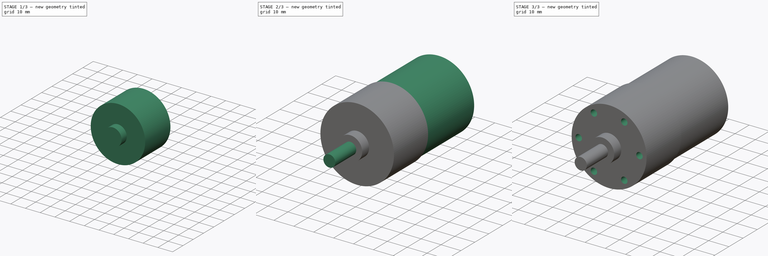
[diagram: build sequence overview — one tinted view per stage of 3, left to right]
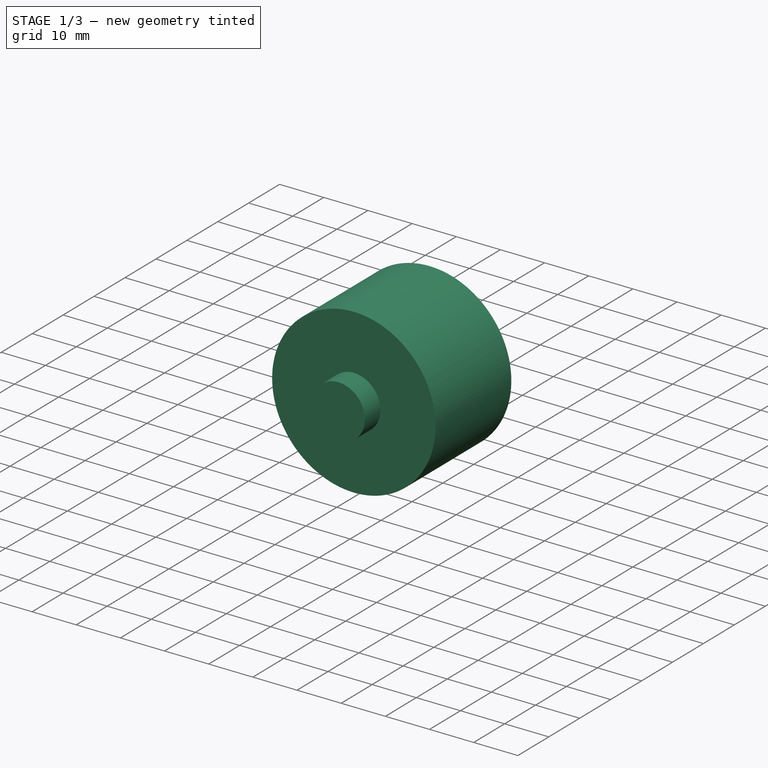
[diagram: stage 1 of 3 — iso view after this stage's code; geometry added in this stage tinted green]
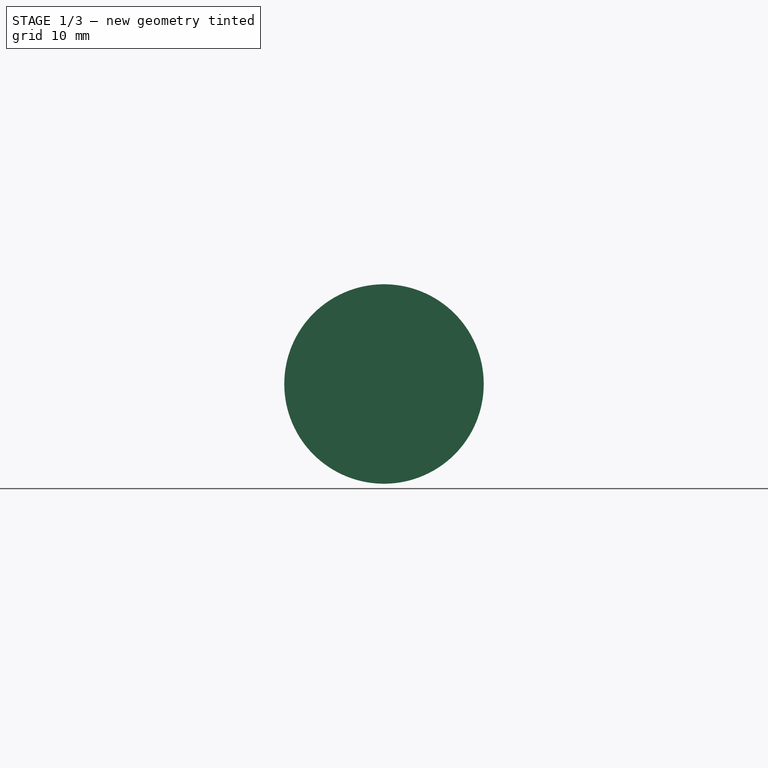
[diagram: stage 1 of 3 — front view after this stage's code; geometry added in this stage tinted green]
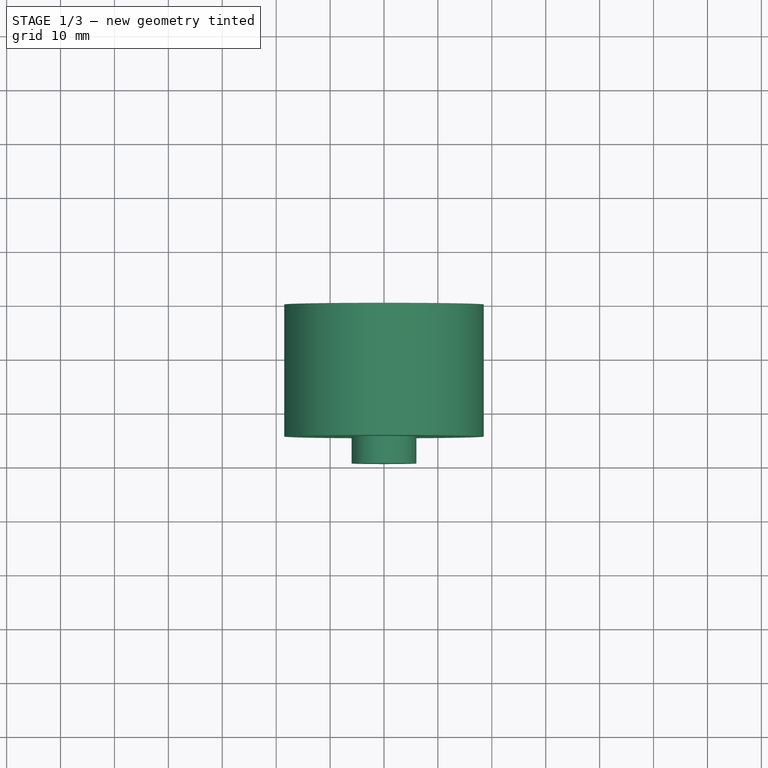
[diagram: stage 1 of 3 — top view after this stage's code; geometry added in this stage tinted green]
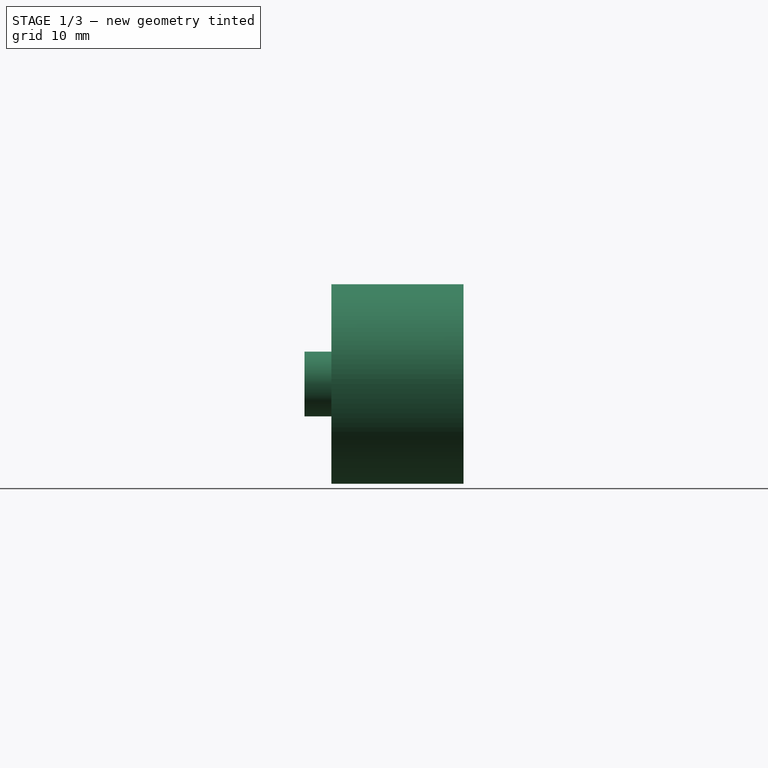
[diagram: stage 1 of 3 — right view after this stage's code; geometry added in this stage tinted green]
FCSTD DOCUMENT  (FreeCAD 0.20R27770 (Git))
Label: DC Motor
License: All rights reserved
LicenseURL: http://en.wikipedia.org/wiki/All_rights_reserved
objects: Sketcher::SketchObject×6, PartDesign::Pad×5, PartDesign::Pocket×1, PartDesign::Body×1
note: 19 computed .brp shape members not serialized (recipe doc carries the construction recipe); baked Part::Feature solids carry a one-line shape summary decoded from their .brp

FEATURE [Sketcher::SketchObject] Sketch
  FullyConstrained = true
  MapMode = 5
  Placement = pos=(0,0,0) rot=(1,0,0;1.5708rad)
  Support = -> [XZ_Plane]
  sketch-geometry (1):
    g0: Circle CenterX=0 CenterY=0 CenterZ=0 NormalX=0 NormalY=0 NormalZ=1 AngleXU=0 Radius=18.5
  constraints (2):
    c: Coincident(g0,g-1)
    c: Diameter(g0) = 37
FEATURE [PartDesign::Pad] Pad
  Direction = (0,-1,2e-16)
  Length = 24.5
  Length2 = 10.0076
  Placement = pos=(0,0,0) rot=(1,0,0;1.5708rad)
  Profile = -> Sketch
  ReferenceAxis = -> Sketch [N_Axis]
  Type = 0
FEATURE [Sketcher::SketchObject] Sketch001
  FullyConstrained = true
  MapMode = 5
  Placement = pos=(0,-24.5,1.63e-14) rot=(1,0,0;1.5708rad)
  Support = -> [Pad]
  sketch-geometry (1):
    g0: Circle CenterX=0 CenterY=0 CenterZ=0 NormalX=0 NormalY=0 NormalZ=1 AngleXU=0 Radius=6
  constraints (2):
    c: Coincident(g0,g-1)
    c: Diameter(g0) = 12
FEATURE [PartDesign::Pad] Pad001
  BaseFeature = -> Pad
  Direction = (0,-1,7e-16)
  Length = 5
  Length2 = 10.0076
  Placement = pos=(0,0,0) rot=(1,0,0;1.5708rad)
  Profile = -> Sketch001
  ReferenceAxis = -> Sketch001 [N_Axis]
  Type = 0
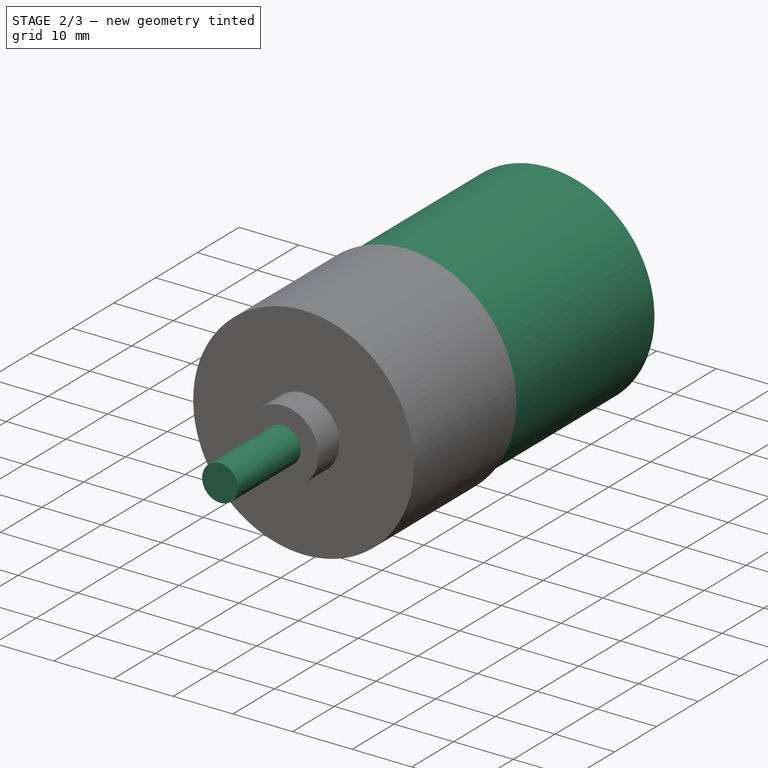
[diagram: stage 2 of 3 — iso view after this stage's code; geometry added in this stage tinted green]
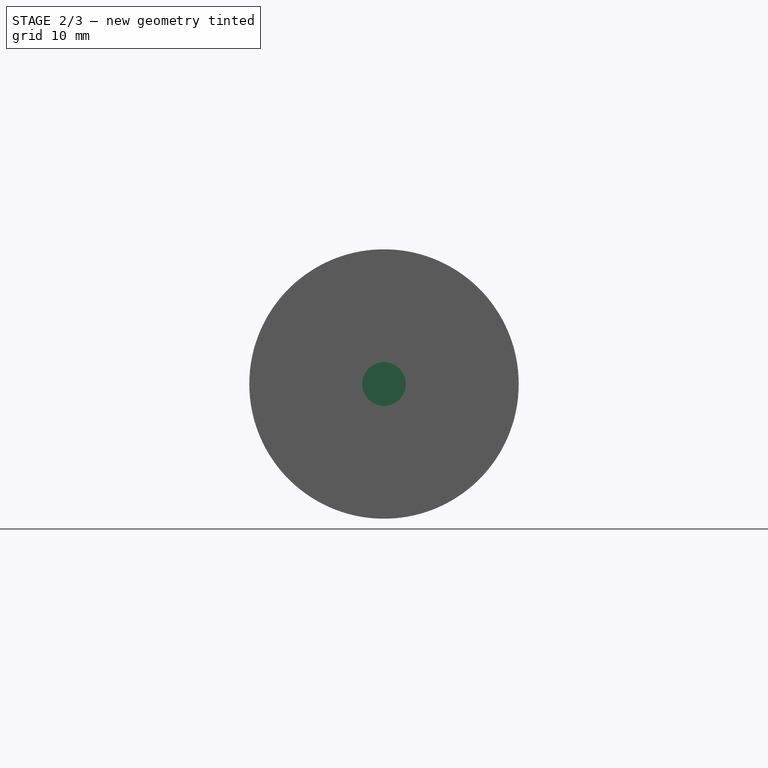
[diagram: stage 2 of 3 — front view after this stage's code; geometry added in this stage tinted green]
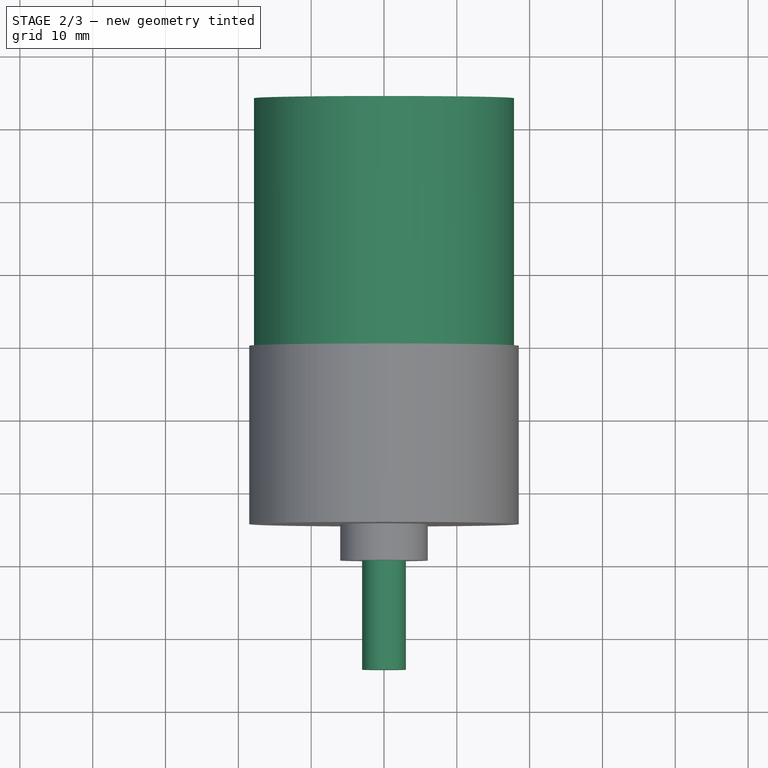
[diagram: stage 2 of 3 — top view after this stage's code; geometry added in this stage tinted green]
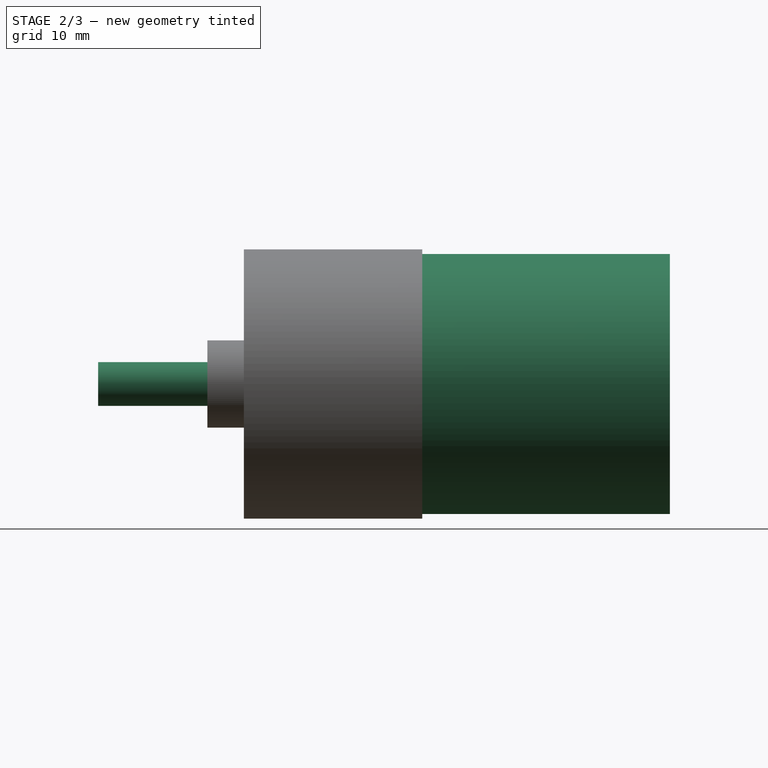
[diagram: stage 2 of 3 — right view after this stage's code; geometry added in this stage tinted green]
FEATURE [Sketcher::SketchObject] Sketch002
  FullyConstrained = true
  MapMode = 5
  Placement = pos=(0,-29.5,3.33e-14) rot=(1,0,0;1.5708rad)
  Support = -> [Pad001]
  sketch-geometry (1):
    g0: Circle CenterX=0 CenterY=0 CenterZ=0 NormalX=0 NormalY=0 NormalZ=1 AngleXU=0 Radius=3
  constraints (2):
    c: Coincident(g0,g-1)
    c: Diameter(g0) = 6
FEATURE [PartDesign::Pad] Pad002
  BaseFeature = -> Pad001
  Direction = (0,-1,1.1e-15)
  Length = 15
  Length2 = 10.0076
  Placement = pos=(0,0,0) rot=(1,0,0;1.5708rad)
  Profile = -> Sketch002
  ReferenceAxis = -> Sketch002 [N_Axis]
  Type = 0
FEATURE [Sketcher::SketchObject] Sketch003
  FullyConstrained = true
  MapMode = 5
  Placement = pos=(0,0,0) rot=(-1,0,0;1.5708rad)
  Support = -> [Pad002]
  sketch-geometry (1):
    g0: Circle CenterX=0 CenterY=0 CenterZ=0 NormalX=0 NormalY=0 NormalZ=1 AngleXU=0 Radius=17.85
  constraints (2):
    c: Coincident(g0,g-1)
    c: Diameter(g0) = 35.7
FEATURE [PartDesign::Pad] Pad003
  BaseFeature = -> Pad002
  Direction = (0,1,-1.4e-15)
  Length = 34
  Length2 = 10.0076
  Placement = pos=(0,0,0) rot=(1,0,0;1.5708rad)
  Profile = -> Sketch003
  ReferenceAxis = -> Sketch003 [N_Axis]
  Type = 0
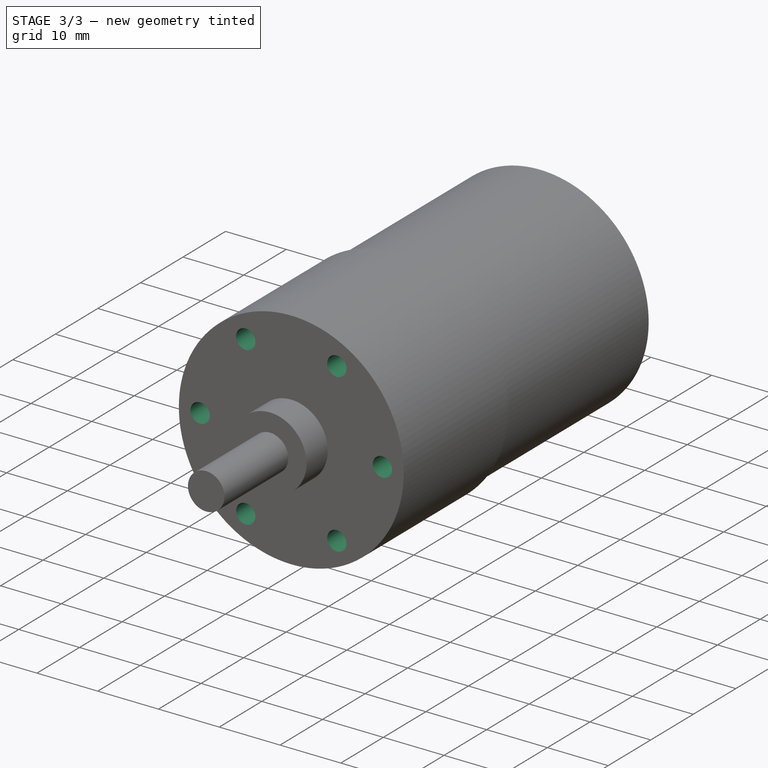
[diagram: stage 3 of 3 — iso view after this stage's code; geometry added in this stage tinted green]
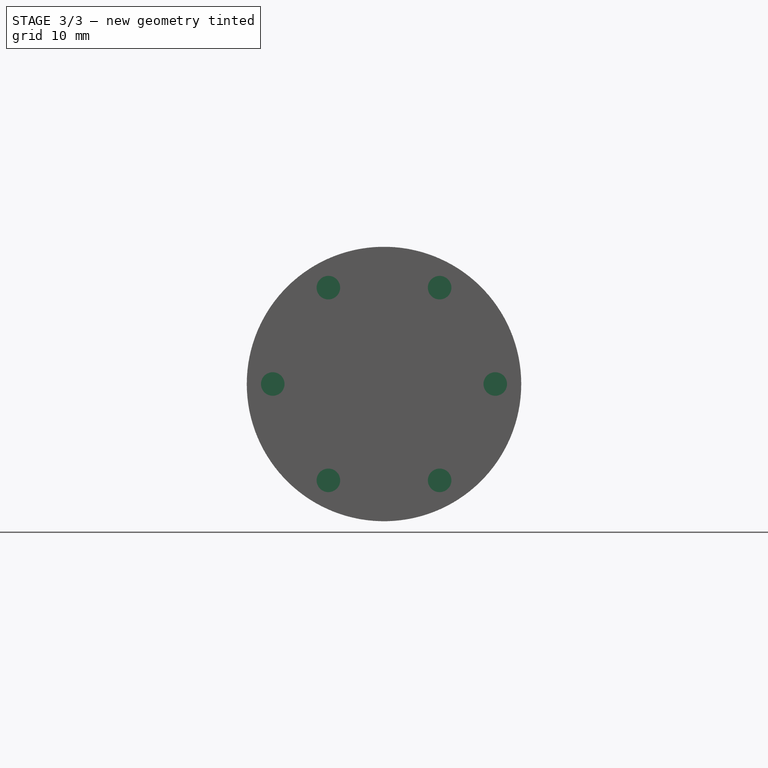
[diagram: stage 3 of 3 — front view after this stage's code; geometry added in this stage tinted green]
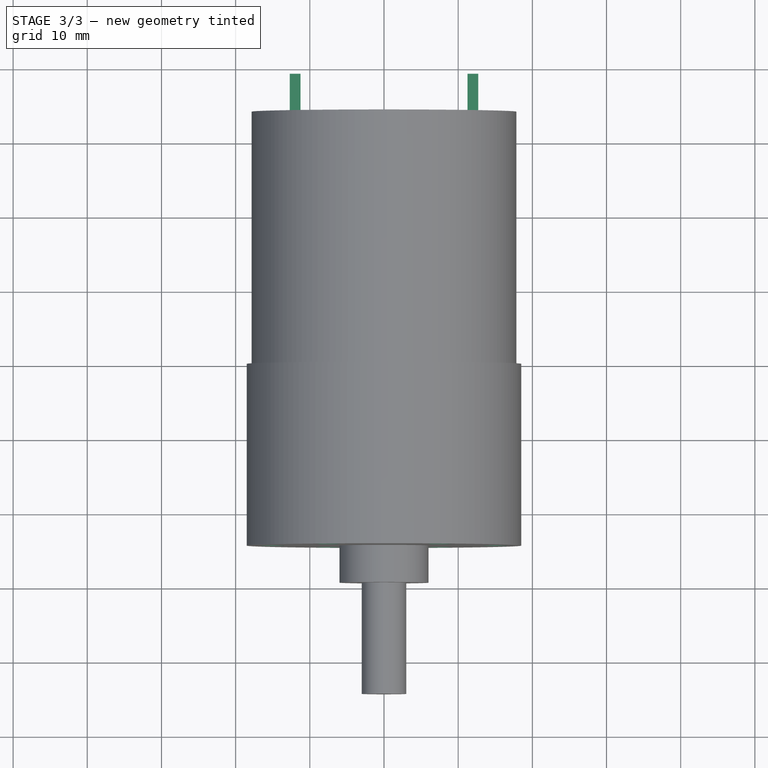
[diagram: stage 3 of 3 — top view after this stage's code; geometry added in this stage tinted green]
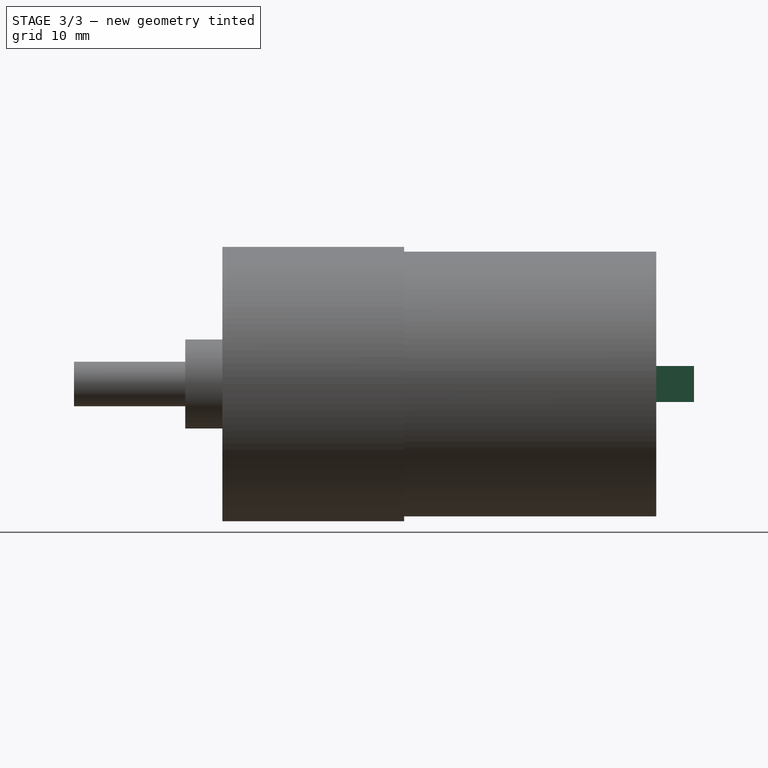
[diagram: stage 3 of 3 — right view after this stage's code; geometry added in this stage tinted green]
FEATURE [Sketcher::SketchObject] Sketch004
  FullyConstrained = false
  MapMode = 5
  Placement = pos=(0,34,-6.04e-14) rot=(-1,0,0;1.5708rad)
  Support = -> [Pad003]
  sketch-geometry (10):
    g0: LineSegment StartX=-12.7093 StartY=2.43425 StartZ=0 EndX=-11.259 EndY=2.43425 EndZ=0
    g1: LineSegment StartX=-11.259 StartY=2.43425 StartZ=0 EndX=-11.259 EndY=-2.43425 EndZ=0
    g2: LineSegment StartX=-11.259 StartY=-2.43425 StartZ=0 EndX=-12.7093 EndY=-2.43425 EndZ=0
    g3: LineSegment StartX=-12.7093 StartY=-2.43425 StartZ=0 EndX=-12.7093 EndY=2.43425 EndZ=0
    g4: LineSegment StartX=11.259 StartY=2.43425 StartZ=0 EndX=12.7093 EndY=2.43425 EndZ=0
    g5: LineSegment StartX=12.7093 StartY=2.43425 StartZ=0 EndX=12.7093 EndY=-2.43425 EndZ=0
    g6: LineSegment StartX=12.7093 StartY=-2.43425 StartZ=0 EndX=11.259 EndY=-2.43425 EndZ=0
    g7: LineSegment StartX=11.259 StartY=-2.43425 StartZ=0 EndX=11.259 EndY=2.43425 EndZ=0
    g8: LineSegment StartX=11.259 StartY=0 StartZ=0 EndX=0 EndY=0 EndZ=0
    g9: LineSegment StartX=0 StartY=0 StartZ=0 EndX=-11.259 EndY=0 EndZ=0
  constraints (25):
    c: Coincident(g0,g1)
    c: Coincident(g1,g2)
    c: Coincident(g2,g3)
    c: Coincident(g3,g0)
    c: Horizontal(g0)
    c: Horizontal(g2)
    c: Vertical(g3)
    c: Coincident(g4,g5)
    c: Coincident(g5,g6)
    c: Coincident(g6,g7)
    c: Coincident(g7,g4)
    c: Horizontal(g4)
    c: Horizontal(g6)
    c: Vertical(g5)
    c: Equal(g0,g4)
    c: Equal(g7,g1)
    c: Symmetric(g0,g1,g-1)
    c: Symmetric(g4,g6,g-1)
    c: PointOnObject(g8,g7)
    c: Coincident(g8,g-1)
    c: Horizontal(g8)
    c: Coincident(g9,g8)
    c: PointOnObject(g9,g1)
    c: Horizontal(g9)
    c: Equal(g9,g8)
FEATURE [PartDesign::Pad] Pad004
  BaseFeature = -> Pad003
  Direction = (0,1,-1.8e-15)
  Length = 5.08
  Length2 = 10.0076
  Placement = pos=(0,0,0) rot=(1,0,0;1.5708rad)
  Profile = -> Sketch004
  ReferenceAxis = -> Sketch004 [N_Axis]
  Type = 0
FEATURE [Sketcher::SketchObject] Sketch005
  FullyConstrained = true
  MapMode = 5
  Placement = pos=(0,-24.5,5.98e-14) rot=(1,0,0;1.5708rad)
  Support = -> [Pad004]
  sketch-geometry (13):
    g0: Circle CenterX=0 CenterY=0 CenterZ=0 NormalX=0 NormalY=0 NormalZ=1 AngleXU=0 Radius=14.9987
    g1: Circle CenterX=-7.49935 CenterY=12.9893 CenterZ=0 NormalX=0 NormalY=0 NormalZ=1 AngleXU=0 Radius=1.5875
    g2: Circle CenterX=-14.9987 CenterY=-2.7e-15 CenterZ=0 NormalX=0 NormalY=0 NormalZ=1 AngleXU=0 Radius=1.5875
    g3: Circle CenterX=-7.49935 CenterY=-12.9893 CenterZ=0 NormalX=0 NormalY=0 NormalZ=1 AngleXU=0 Radius=1.5875
    g4: Circle CenterX=7.49935 CenterY=-12.9893 CenterZ=0 NormalX=0 NormalY=0 NormalZ=1 AngleXU=0 Radius=1.5875
    g5: Circle CenterX=14.9987 CenterY=7.1e-15 CenterZ=0 NormalX=0 NormalY=0 NormalZ=1 AngleXU=0 Radius=1.5875
    g6: Circle CenterX=7.49935 CenterY=12.9893 CenterZ=0 NormalX=0 NormalY=0 NormalZ=1 AngleXU=0 Radius=1.5875
    g7: LineSegment StartX=7.49935 StartY=12.9893 StartZ=0 EndX=-7.49935 EndY=12.9893 EndZ=0
    g8: LineSegment StartX=7.49935 StartY=12.9893 StartZ=0 EndX=14.9987 EndY=7.1e-15 EndZ=0
    g9: LineSegment StartX=14.9987 StartY=7.1e-15 StartZ=0 EndX=7.49935 EndY=-12.9893 EndZ=0
    g10: LineSegment StartX=7.49935 StartY=-12.9893 StartZ=0 EndX=-7.49935 EndY=-12.9893 EndZ=0
    g11: LineSegment StartX=-7.49935 StartY=-12.9893 StartZ=0 EndX=-14.9987 EndY=-3.6e-15 EndZ=0
    g12: LineSegment StartX=-14.9987 StartY=-2.7e-15 StartZ=0 EndX=-7.49935 EndY=12.9893 EndZ=0
  constraints (32):
    c: Coincident(g0,g-1)
    c: Diameter(g0) = 29.9974
    c: PointOnObject(g1,g0)
    c: PointOnObject(g2,g0)
    c: PointOnObject(g3,g0)
    c: PointOnObject(g4,g0)
    c: PointOnObject(g5,g0)
    c: PointOnObject(g6,g0)
    c: Equal(g6,g1)
    c: Equal(g1,g2)
    c: Equal(g2,g3)
    c: Equal(g3,g4)
    c: Equal(g4,g5)
    c: Diameter(g6) = 3.175
    c: Coincident(g7,g1)
    c: Coincident(g8,g6)
    c: Coincident(g8,g5)
    c: Coincident(g9,g5)
    c: Coincident(g9,g4)
    c: Coincident(g10,g4)
    c: Coincident(g10,g3)
    c: Coincident(g10,g11)
    c: Coincident(g11,g2)
    c: Coincident(g11,g12)
    c: Coincident(g12,g1)
    c: Horizontal(g7)
    c: Coincident(g6,g7)
    c: Horizontal(g10)
    c: Equal(g11,g12)
    c: Equal(g12,g7)
    c: Equal(g7,g8)
    c: Equal(g9,g10)
FEATURE [PartDesign::Pocket] Pocket
  BaseFeature = -> Pad004
  Direction = (0,1,-2.4e-15)
  Length = 6.35
  Length2 = 5.0038
  Placement = pos=(0,0,0) rot=(1,0,0;1.5708rad)
  Profile = -> Sketch005
  ReferenceAxis = -> Sketch005 [N_Axis]
  Type = 0
FEATURE [PartDesign::Body] Body  label="DCMotorBody"
  Group = -> [Sketch,Pad,Sketch001,Pad001,Sketch002,Pad002,Sketch003,Pad003,Sketch004,Pad004,Sketch005,Pocket]
  Origin = -> Origin
  Tip = -> Pocket
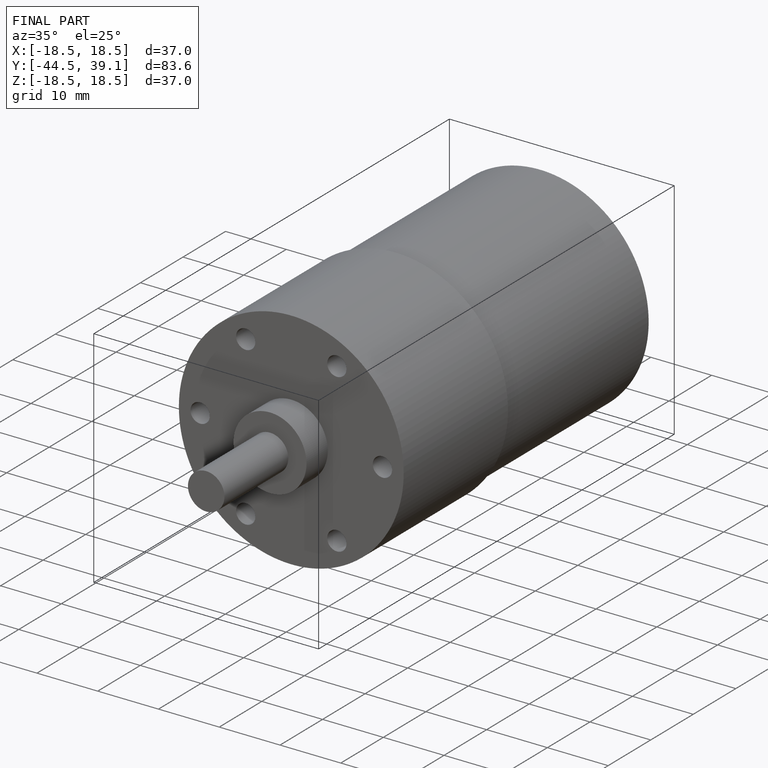
[diagram: finished part — iso view with bounding-box wireframe]
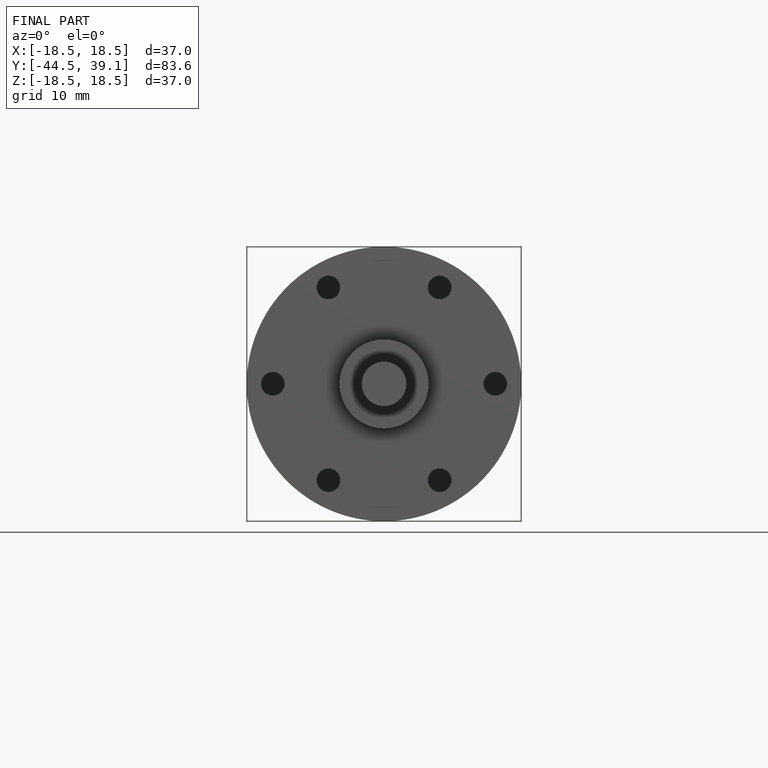
[diagram: finished part — front view with bounding-box wireframe]
